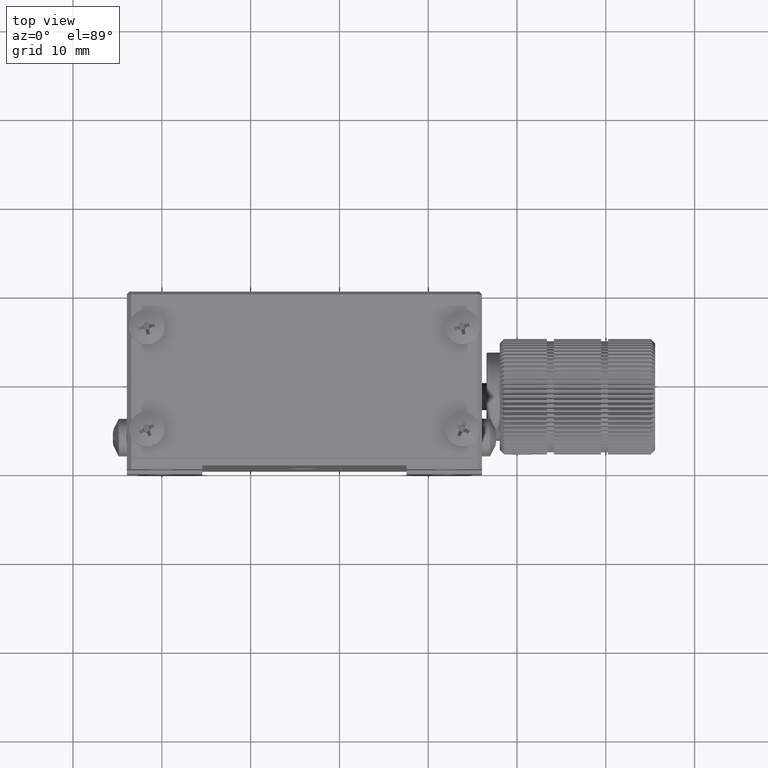
[diagram: clean part render]
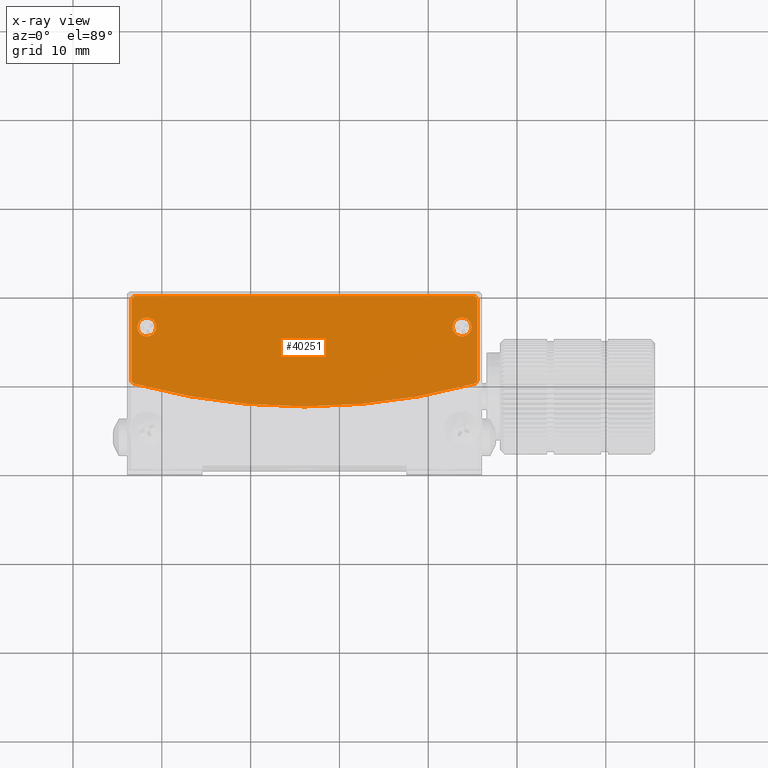
[diagram: x-ray — body ghosted, one internal face saturated and labeled with its STEP entity id]
A machine part, top view, then the same camera in x-ray: the body is ghosted and one INTERNAL B-rep face — a face not visible from any outside direction — is saturated and labeled: STEP entity #40251.
In plain terms, the highlighted planar face has unit normal (0, 0, -1).
Its self-contained STEP definition (entity closure, byte-faithful):
#275 = CARTESIAN_POINT ( 'NONE',  ( -14.81065842274185584, -0.5438013107836037197, 48.03289764911261983 ) ) ;
#1026 = CARTESIAN_POINT ( 'NONE',  ( -33.94169290550053120, 69.90478646512215732, 48.03289764911286852 ) ) ;
#1611 = CARTESIAN_POINT ( 'NONE',  ( -14.44169290550048679, 69.90478646512215732, 48.03289764911287563 ) ) ;
#1825 = EDGE_CURVE ( 'NONE', #7071, #31803, #32152, .T. ) ;
#2192 = DIRECTION ( 'NONE',  ( 0.000000000000000000, -1.000000000000000000, 0.000000000000000000 ) ) ;
#2771 = DIRECTION ( 'NONE',  ( 5.670135843773770358E-18, 3.483429077798526713E-15, -1.000000000000000000 ) ) ;
#4540 = CARTESIAN_POINT ( 'NONE',  ( -51.69169290550048856, 4.807433991841388199, 48.03289764911263404 ) ) ;
#4876 = EDGE_CURVE ( 'NONE', #19920, #59318, #64529, .T. ) ;
#5414 = EDGE_LOOP ( 'NONE', ( #18736, #38178, #30881, #16963, #64802, #37845, #23713, #11527 ) ) ;
#6363 = DIRECTION ( 'NONE',  ( 5.670135843773770358E-18, 3.483429077798526713E-15, -1.000000000000000000 ) ) ;
#6945 = VERTEX_POINT ( 'NONE', #63661 ) ;
#7025 = CARTESIAN_POINT ( 'NONE',  ( -14.94169290550048679, 8.857433991841411114, 48.03289764911265536 ) ) ;
#7071 = VERTEX_POINT ( 'NONE', #34543 ) ;
#7229 = DIRECTION ( 'NONE',  ( 5.670135843773770358E-18, 3.483429077798526713E-15, -1.000000000000000000 ) ) ;
#8951 = DIRECTION ( 'NONE',  ( 0.000000000000000000, 1.000000000000000000, 3.483429077798527107E-15 ) ) ;
#10726 = AXIS2_PLACEMENT_3D ( 'NONE', #44367, #33316, #13549 ) ;
#11008 = LINE ( 'NONE', #1611, #30235 ) ;
#11527 = ORIENTED_EDGE ( 'NONE', *, *, #4876, .T. ) ;
#11736 = CARTESIAN_POINT ( 'NONE',  ( -53.07272738825910352, -0.5438013107836429105, 48.03289764911261983 ) ) ;
#11963 = CIRCLE ( 'NONE', #16257, 0.5000000000000004441 ) ;
#12080 = CARTESIAN_POINT ( 'NONE',  ( -14.44169290550048679, 8.857433991841412890, 48.03289764911265536 ) ) ;
#13431 = VECTOR ( 'NONE', #65622, 1000.000000000000000 ) ;
#13549 = DIRECTION ( 'NONE',  ( 0.000000000000000000, 1.000000000000000000, 3.483429077798527107E-15 ) ) ;
#14842 = CARTESIAN_POINT ( 'NONE',  ( -52.94169290550050277, 9.357433991841384469, 48.03289764911265536 ) ) ;
#16257 = AXIS2_PLACEMENT_3D ( 'NONE', #16528, #22534, #46966 ) ;
#16507 = EDGE_CURVE ( 'NONE', #55765, #55765, #33012, .T. ) ;
#16528 = CARTESIAN_POINT ( 'NONE',  ( -52.94169290550049567, -0.06127673697606597636, 48.03289764911261983 ) ) ;
#16963 = ORIENTED_EDGE ( 'NONE', *, *, #1825, .T. ) ;
#16970 = AXIS2_PLACEMENT_3D ( 'NONE', #7025, #36876, #37195 ) ;
#16976 = VECTOR ( 'NONE', #8951, 1000.000000000000000 ) ;
#16981 = AXIS2_PLACEMENT_3D ( 'NONE', #47567, #47889, #32189 ) ;
#18736 = ORIENTED_EDGE ( 'NONE', *, *, #36734, .T. ) ;
#19091 = CARTESIAN_POINT ( 'NONE',  ( -33.94169290550053120, 9.357433991841384469, 48.03289764911266246 ) ) ;
#19920 = VERTEX_POINT ( 'NONE', #22864 ) ;
#20091 = EDGE_LOOP ( 'NONE', ( #42285 ) ) ;
#20274 = AXIS2_PLACEMENT_3D ( 'NONE', #1026, #6363, #41895 ) ;
#20420 = CIRCLE ( 'NONE', #20274, 73.00000000000001421 ) ;
#20444 = FACE_BOUND ( 'NONE', #66113, .T. ) ;
#21623 = CARTESIAN_POINT ( 'NONE',  ( -52.94169290550050277, 8.857433991841382692, 48.03289764911265536 ) ) ;
#22534 = DIRECTION ( 'NONE',  ( 5.670135843773770358E-18, 3.483429077798526713E-15, -1.000000000000000000 ) ) ;
#22864 = CARTESIAN_POINT ( 'NONE',  ( -53.44169290550049567, 8.857433991841384469, 48.03289764911265536 ) ) ;
#23713 = ORIENTED_EDGE ( 'NONE', *, *, #25748, .T. ) ;
#23825 = EDGE_CURVE ( 'NONE', #30703, #34931, #11963, .T. ) ;
#24665 = LINE ( 'NONE', #59492, #16976 ) ;
#25748 = EDGE_CURVE ( 'NONE', #34931, #19920, #24665, .T. ) ;
#26798 = EDGE_CURVE ( 'NONE', #50770, #50770, #46875, .T. ) ;
#28668 = DIRECTION ( 'NONE',  ( -5.670135843773770358E-18, -3.483429077798526713E-15, 1.000000000000000000 ) ) ;
#30204 = FACE_BOUND ( 'NONE', #20091, .T. ) ;
#30235 = VECTOR ( 'NONE', #51184, 1000.000000000000000 ) ;
#30703 = VERTEX_POINT ( 'NONE', #11736 ) ;
#30881 = ORIENTED_EDGE ( 'NONE', *, *, #44257, .T. ) ;
#31803 = VERTEX_POINT ( 'NONE', #275 ) ;
#32152 = CIRCLE ( 'NONE', #39632, 0.5000000000000004441 ) ;
#32189 = DIRECTION ( 'NONE',  ( 0.000000000000000000, -1.000000000000000000, -6.608470384673580212E-15 ) ) ;
#32936 = DIRECTION ( 'NONE',  ( 0.000000000000000000, -1.000000000000000000, 0.000000000000000000 ) ) ;
#33012 = CIRCLE ( 'NONE', #39489, 1.049999999999998934 ) ;
#33316 = DIRECTION ( 'NONE',  ( 5.670135843773805795E-18, 3.483429077798527107E-15, -1.000000000000000000 ) ) ;
#33694 = CARTESIAN_POINT ( 'NONE',  ( -16.19169290550048501, 5.857433991841409338, 48.03289764911264115 ) ) ;
#34543 = CARTESIAN_POINT ( 'NONE',  ( -14.44169290550048501, -0.06127673697603735342, 48.03289764911262694 ) ) ;
#34630 = AXIS2_PLACEMENT_3D ( 'NONE', #21623, #7229, #2192 ) ;
#34727 = CARTESIAN_POINT ( 'NONE',  ( -16.19169290550048501, 4.807433991841411292, 48.03289764911263404 ) ) ;
#34931 = VERTEX_POINT ( 'NONE', #51028 ) ;
#36734 = EDGE_CURVE ( 'NONE', #59318, #6945, #39882, .T. ) ;
#36876 = DIRECTION ( 'NONE',  ( 5.670135843773770358E-18, 3.483429077798526713E-15, -1.000000000000000000 ) ) ;
#37195 = DIRECTION ( 'NONE',  ( 0.000000000000000000, -1.000000000000000000, 0.000000000000000000 ) ) ;
#37845 = ORIENTED_EDGE ( 'NONE', *, *, #23825, .T. ) ;
#38178 = ORIENTED_EDGE ( 'NONE', *, *, #52697, .T. ) ;
#39489 = AXIS2_PLACEMENT_3D ( 'NONE', #33694, #28668, #58441 ) ;
#39632 = AXIS2_PLACEMENT_3D ( 'NONE', #58666, #2771, #32936 ) ;
#39882 = LINE ( 'NONE', #19091, #13431 ) ;
#40251 = ADVANCED_FACE ( 'NONE', ( #30204, #64090, #20444 ), #59406, .T. ) ;
#41895 = DIRECTION ( 'NONE',  ( 0.000000000000000000, -1.000000000000000000, -3.516973622528320671E-15 ) ) ;
#42285 = ORIENTED_EDGE ( 'NONE', *, *, #16507, .T. ) ;
#43498 = ORIENTED_EDGE ( 'NONE', *, *, #26798, .T. ) ;
#44257 = EDGE_CURVE ( 'NONE', #45239, #7071, #11008, .T. ) ;
#44367 = CARTESIAN_POINT ( 'NONE',  ( -33.94169290550053120, 69.90478646512215732, 48.03289764911287563 ) ) ;
#45239 = VERTEX_POINT ( 'NONE', #12080 ) ;
#46875 = CIRCLE ( 'NONE', #16981, 1.049999999999995381 ) ;
#46966 = DIRECTION ( 'NONE',  ( 0.000000000000000000, -1.000000000000000000, 0.000000000000000000 ) ) ;
#47566 = EDGE_CURVE ( 'NONE', #31803, #30703, #20420, .T. ) ;
#47567 = CARTESIAN_POINT ( 'NONE',  ( -51.69169290550048856, 5.857433991841383580, 48.03289764911264115 ) ) ;
#47889 = DIRECTION ( 'NONE',  ( -5.670135843773770358E-18, -3.483429077798526713E-15, 1.000000000000000000 ) ) ;
#50770 = VERTEX_POINT ( 'NONE', #4540 ) ;
#51028 = CARTESIAN_POINT ( 'NONE',  ( -53.44169290550049567, -0.06127673697606640657, 48.03289764911262694 ) ) ;
#51184 = DIRECTION ( 'NONE',  ( -0.000000000000000000, -1.000000000000000000, -3.483429077798527107E-15 ) ) ;
#52697 = EDGE_CURVE ( 'NONE', #6945, #45239, #63986, .T. ) ;
#55765 = VERTEX_POINT ( 'NONE', #34727 ) ;
#58441 = DIRECTION ( 'NONE',  ( 0.000000000000000000, -1.000000000000000000, -6.608470384673557335E-15 ) ) ;
#58666 = CARTESIAN_POINT ( 'NONE',  ( -14.94169290550048146, -0.06127673697603822078, 48.03289764911261983 ) ) ;
#59318 = VERTEX_POINT ( 'NONE', #14842 ) ;
#59406 = PLANE ( 'NONE',  #10726 ) ;
#59492 = CARTESIAN_POINT ( 'NONE',  ( -53.44169290550049567, 69.90478646512215732, 48.03289764911287563 ) ) ;
#63661 = CARTESIAN_POINT ( 'NONE',  ( -14.94169290550048679, 9.357433991841398679, 48.03289764911265536 ) ) ;
#63986 = CIRCLE ( 'NONE', #16970, 0.5000000000000004441 ) ;
#64090 = FACE_OUTER_BOUND ( 'NONE', #5414, .T. ) ;
#64529 = CIRCLE ( 'NONE', #34630, 0.5000000000000004441 ) ;
#64802 = ORIENTED_EDGE ( 'NONE', *, *, #47566, .T. ) ;
#65622 = DIRECTION ( 'NONE',  ( 1.000000000000000000, -1.975151607326936281E-32, 5.670135843773805795E-18 ) ) ;
#66113 = EDGE_LOOP ( 'NONE', ( #43498 ) ) ;